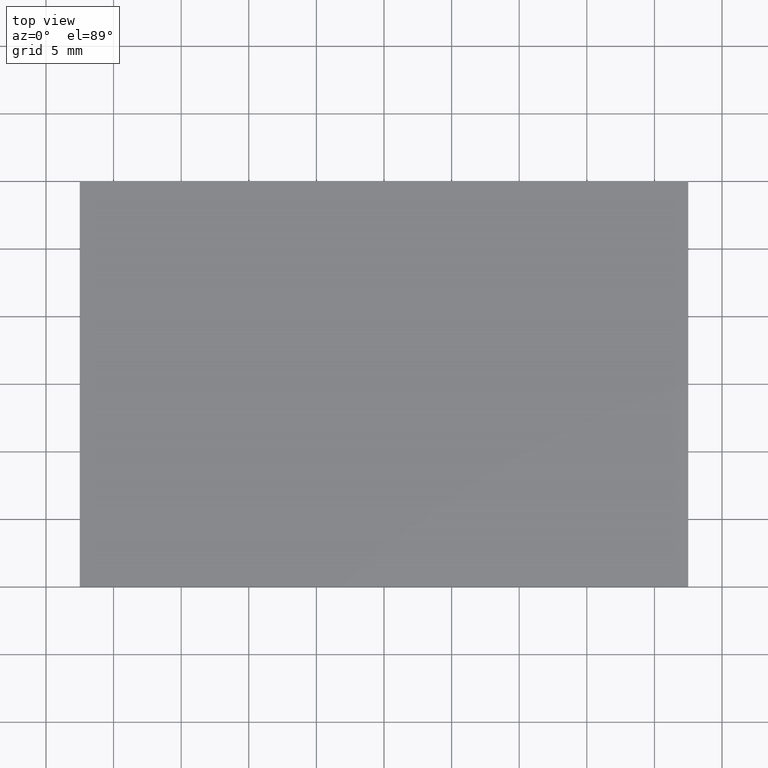
[diagram: clean part render]
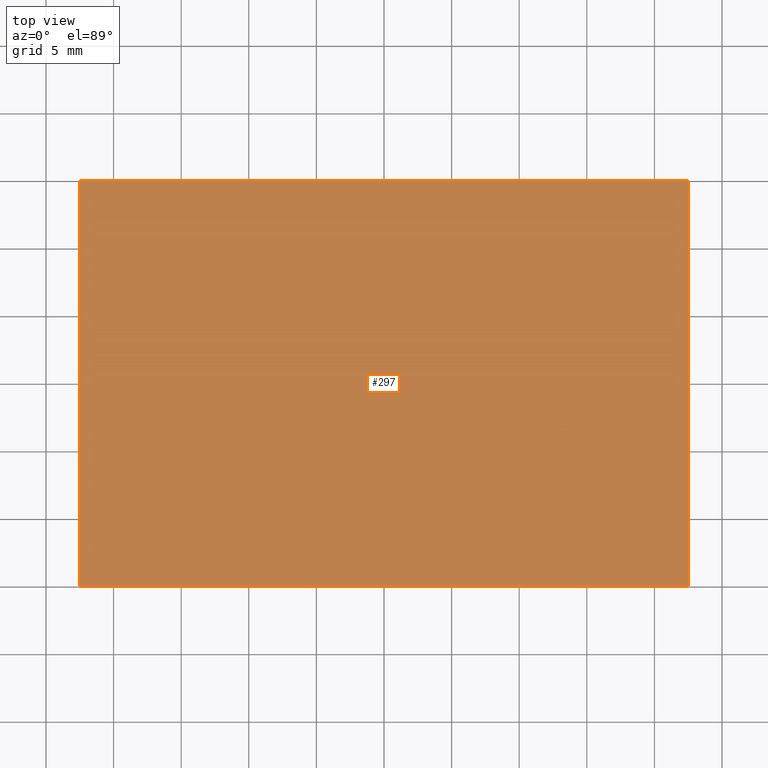
[diagram: same view with one face highlighted and labeled with its STEP entity id]
A machine part, top view. The second image highlights one B-rep face of the part: STEP entity #297.
In plain terms, the highlighted planar face has unit normal (0, 0, -1).
Its self-contained STEP definition (entity closure, byte-faithful):
#11 = EDGE_LOOP ( 'NONE', ( #221, #121, #105, #145 ) ) ;
#19 = CARTESIAN_POINT ( 'NONE',  ( 22.50000000000000000, -15.00000000000000000, 1.100000000000000100 ) ) ;
#20 = AXIS2_PLACEMENT_3D ( 'NONE', #232, #281, #251 ) ;
#21 = DIRECTION ( 'NONE',  ( -1.000000000000000000, -0.0000000000000000000, -0.0000000000000000000 ) ) ;
#27 = VERTEX_POINT ( 'NONE', #106 ) ;
#37 = LINE ( 'NONE', #114, #292 ) ;
#43 = CARTESIAN_POINT ( 'NONE',  ( -22.49999999999999600, 15.00000000000000000, 1.100000000000000100 ) ) ;
#57 = LINE ( 'NONE', #177, #295 ) ;
#90 = DIRECTION ( 'NONE',  ( -0.0000000000000000000, -1.000000000000000000, -0.0000000000000000000 ) ) ;
#105 = ORIENTED_EDGE ( 'NONE', *, *, #161, .T. ) ;
#106 = CARTESIAN_POINT ( 'NONE',  ( -22.49999999999999600, -15.00000000000000000, 1.100000000000000100 ) ) ;
#112 = CARTESIAN_POINT ( 'NONE',  ( -22.49999999999999600, 15.00000000000000000, 1.100000000000000100 ) ) ;
#114 = CARTESIAN_POINT ( 'NONE',  ( -22.49999999999999600, -15.00000000000000000, 1.100000000000000100 ) ) ;
#121 = ORIENTED_EDGE ( 'NONE', *, *, #263, .T. ) ;
#129 = VERTEX_POINT ( 'NONE', #176 ) ;
#145 = ORIENTED_EDGE ( 'NONE', *, *, #298, .T. ) ;
#154 = VERTEX_POINT ( 'NONE', #43 ) ;
#155 = DIRECTION ( 'NONE',  ( 0.0000000000000000000, 1.000000000000000000, 0.0000000000000000000 ) ) ;
#161 = EDGE_CURVE ( 'NONE', #154, #27, #37, .T. ) ;
#167 = VECTOR ( 'NONE', #21, 1000.000000000000000 ) ;
#168 = VERTEX_POINT ( 'NONE', #199 ) ;
#171 = LINE ( 'NONE', #112, #167 ) ;
#176 = CARTESIAN_POINT ( 'NONE',  ( 22.50000000000000000, -15.00000000000000000, 1.100000000000000100 ) ) ;
#177 = CARTESIAN_POINT ( 'NONE',  ( -22.49999999999999600, -15.00000000000000000, 1.100000000000000100 ) ) ;
#199 = CARTESIAN_POINT ( 'NONE',  ( 22.50000000000000000, 15.00000000000000000, 1.100000000000000100 ) ) ;
#215 = EDGE_CURVE ( 'NONE', #129, #168, #279, .T. ) ;
#221 = ORIENTED_EDGE ( 'NONE', *, *, #215, .T. ) ;
#226 = DIRECTION ( 'NONE',  ( 1.000000000000000000, 0.0000000000000000000, 0.0000000000000000000 ) ) ;
#232 = CARTESIAN_POINT ( 'NONE',  ( 0.0000000000000000000, 0.0000000000000000000, 1.100000000000000100 ) ) ;
#238 = VECTOR ( 'NONE', #155, 1000.000000000000000 ) ;
#251 = DIRECTION ( 'NONE',  ( -1.000000000000000000, 0.0000000000000000000, -0.0000000000000000000 ) ) ;
#263 = EDGE_CURVE ( 'NONE', #168, #154, #171, .T. ) ;
#279 = LINE ( 'NONE', #19, #238 ) ;
#281 = DIRECTION ( 'NONE',  ( 0.0000000000000000000, 0.0000000000000000000, -1.000000000000000000 ) ) ;
#291 = FACE_OUTER_BOUND ( 'NONE', #11, .T. ) ;
#292 = VECTOR ( 'NONE', #90, 1000.000000000000000 ) ;
#295 = VECTOR ( 'NONE', #226, 1000.000000000000000 ) ;
#297 = ADVANCED_FACE ( 'NONE', ( #291 ), #310, .F. ) ;
#298 = EDGE_CURVE ( 'NONE', #27, #129, #57, .T. ) ;
#310 = PLANE ( 'NONE',  #20 ) ;